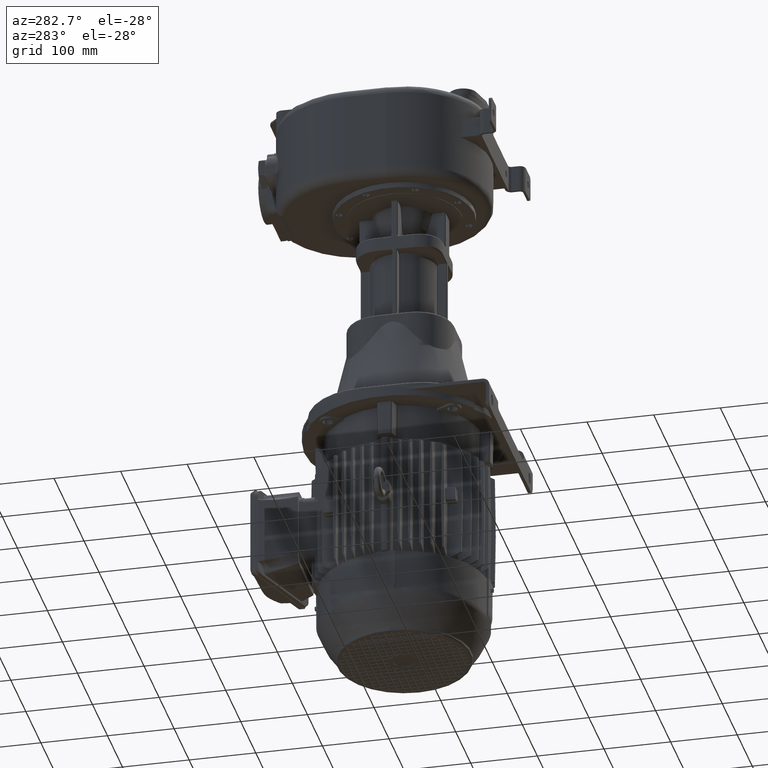
[diagram: clean part render]
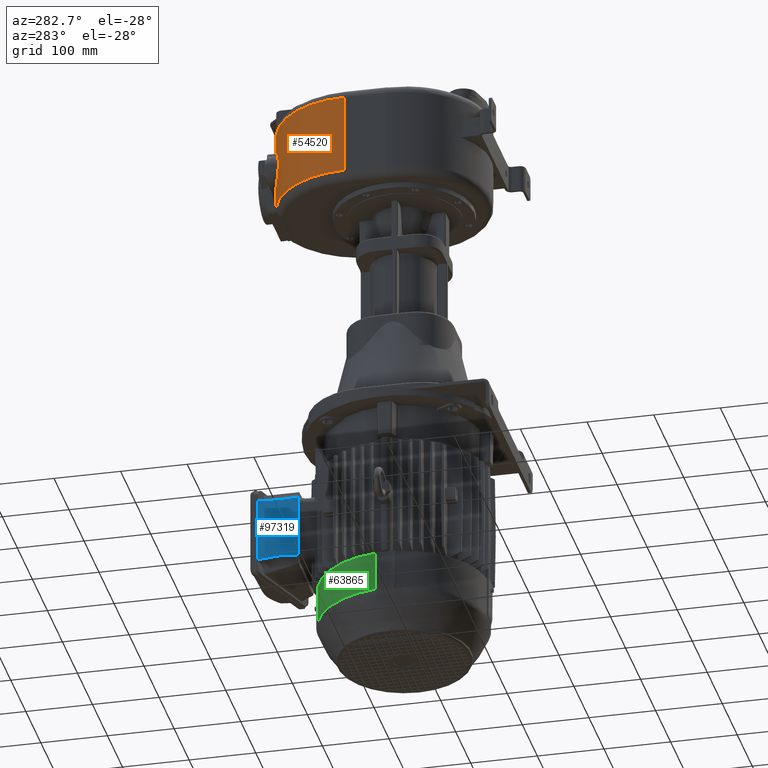
[diagram: same view with three faces highlighted in distinct colors, each labeled with its STEP entity id]
A machine part, auxiliary view with three faces highlighted in distinct colors.
Their STEP definitions:

[orange] entity #54520 — the highlighted cylindrical surface (partial cylindrical patch) has radius 129 mm, axis along (0, 0, -1).
#656=DIRECTION('',(9.529312139187E-8,-3.361244828017E-7,-9.999999999999E-1));
#657=VECTOR('',#656,3.168652454076E1);
#658=CARTESIAN_POINT('',(-3.518181818182E1,3.166967310867E2,4.5E1));
#659=LINE('',#658,#657);
#996=DIRECTION('',(7.019838741060E-7,-3.864279746315E-7,-9.999999999997E-1));
#997=VECTOR('',#996,3.268569113256E1);
#998=CARTESIAN_POINT('',(-3.518181518582E1,3.166967205185E2,-4.331347545921E1));
#999=LINE('',#998,#997);
#1241=CARTESIAN_POINT('',(0.E0,1.925869423132E2,4.5E1));
#1242=DIRECTION('',(0.E0,0.E0,1.E0));
#1243=DIRECTION('',(-2.727272727273E-1,9.620913858417E-1,0.E0));
#1244=AXIS2_PLACEMENT_3D('',#1241,#1242,#1243);
#1246=DIRECTION('',(0.E0,1.550275059840E-14,1.E0));
#1247=VECTOR('',#1246,1.21E2);
#1248=CARTESIAN_POINT('',(-1.29E2,1.925869423132E2,-7.6E1));
#1249=LINE('',#1248,#1247);
#1250=CARTESIAN_POINT('',(0.E0,1.925869423132E2,-7.6E1));
#1251=DIRECTION('',(0.E0,0.E0,-1.E0));
#1252=DIRECTION('',(-1.E0,0.E0,0.E0));
#1253=AXIS2_PLACEMENT_3D('',#1250,#1251,#1252);
#1255=CARTESIAN_POINT('',(-3.518181518582E1,3.166967205185E2,
-4.331347545921E1));
#1256=CARTESIAN_POINT('',(-3.546750103369E1,3.166157351379E2,
-4.324821476931E1));
#1257=CARTESIAN_POINT('',(-3.603761142722E1,3.164520118357E2,
-4.310833304633E1));
#1258=CARTESIAN_POINT('',(-3.688943258625E1,3.162009843981E2,
-4.287009964294E1));
#1259=CARTESIAN_POINT('',(-3.773622321974E1,3.159451084647E2,
-4.260355138208E1));
#1260=CARTESIAN_POINT('',(-3.857688532234E1,3.156847915229E2,
-4.230874643593E1));
#1261=CARTESIAN_POINT('',(-3.941026131800E1,3.154205052662E2,
-4.198585175601E1));
#1262=CARTESIAN_POINT('',(-4.023522996043E1,3.151527401103E2,
-4.163507694740E1));
#1263=CARTESIAN_POINT('',(-4.105067058343E1,3.148820197654E2,
-4.125668435945E1));
#1264=CARTESIAN_POINT('',(-4.185549240496E1,3.146088898864E2,
-4.085099907875E1));
#1265=CARTESIAN_POINT('',(-4.264865770218E1,3.143339085035E2,
-4.041837936415E1));
#1266=CARTESIAN_POINT('',(-4.342913687237E1,3.140576596698E2,
-3.995922707424E1));
#1267=CARTESIAN_POINT('',(-4.419593244733E1,3.137807434923E2,
-3.947398447291E1));
#1268=CARTESIAN_POINT('',(-4.494791575175E1,3.135038352066E2,
-3.896326221082E1));
#1269=CARTESIAN_POINT('',(-4.568399240113E1,3.132276265550E2,
-3.842773561001E1));
#1270=CARTESIAN_POINT('',(-4.640310991754E1,3.129528201553E2,
-3.786813826327E1));
#1271=CARTESIAN_POINT('',(-4.710426822406E1,3.126801228232E2,
-3.728526332746E1));
#1272=CARTESIAN_POINT('',(-4.778652297410E1,3.124102411208E2,
-3.667995208195E1));
#1273=CARTESIAN_POINT('',(-4.844898434049E1,3.121438785839E2,
-3.605309001664E1));
#1274=CARTESIAN_POINT('',(-4.909079574087E1,3.118817412359E2,
-3.540563090386E1));
#1275=CARTESIAN_POINT('',(-4.971113152758E1,3.116245360814E2,
-3.473860835341E1));
#1276=CARTESIAN_POINT('',(-5.030923547228E1,3.113729521976E2,
-3.405308969707E1));
#1277=CARTESIAN_POINT('',(-5.088441220406E1,3.111276607151E2,
-3.335019127657E1));
#1278=CARTESIAN_POINT('',(-5.143607396538E1,3.108892910868E2,
-3.263101868471E1));
#1279=CARTESIAN_POINT('',(-5.196369862140E1,3.106584448124E2,
-3.189668538683E1));
#1280=CARTESIAN_POINT('',(-5.246679821143E1,3.104357065655E2,
-3.114836375353E1));
#1281=CARTESIAN_POINT('',(-5.294509766336E1,3.102215613264E2,
-3.038706289312E1));
#1282=CARTESIAN_POINT('',(-5.339843298450E1,3.100164338297E2,
-2.961363685256E1));
#1283=CARTESIAN_POINT('',(-5.382663385619E1,3.098207393215E2,
-2.882895673020E1));
#1284=CARTESIAN_POINT('',(-5.422957386200E1,3.096348596140E2,
-2.803381302327E1));
#1285=CARTESIAN_POINT('',(-5.460705678582E1,3.094591944144E2,
-2.722935605574E1));
#1286=CARTESIAN_POINT('',(-5.495882842870E1,3.092941567742E2,
-2.641695570692E1));
#1287=CARTESIAN_POINT('',(-5.528487026364E1,3.091400338532E2,
-2.559754288209E1));
#1288=CARTESIAN_POINT('',(-5.558540388959E1,3.089969794570E2,
-2.477129711167E1));
#1289=CARTESIAN_POINT('',(-5.586055326759E1,3.088651724520E2,
-2.393856406921E1));
#1290=CARTESIAN_POINT('',(-5.611024735150E1,3.087448657515E2,
-2.310068181740E1));
#1291=CARTESIAN_POINT('',(-5.633440779923E1,3.086362976111E2,
-2.225907485843E1));
#1292=CARTESIAN_POINT('',(-5.653316329682E1,3.085395865450E2,
-2.141447780586E1));
#1293=CARTESIAN_POINT('',(-5.670681078395E1,3.084547475743E2,
-2.056656100180E1));
#1294=CARTESIAN_POINT('',(-5.685544741786E1,3.083818719414E2,
-1.971495179229E1));
#1295=CARTESIAN_POINT('',(-5.697918543387E1,3.083210233660E2,
-1.886034495313E1));
#1296=CARTESIAN_POINT('',(-5.707810423772E1,3.082722615107E2,
-1.800383159019E1));
#1297=CARTESIAN_POINT('',(-5.715226589367E1,3.082356346791E2,
-1.714648380242E1));
#1298=CARTESIAN_POINT('',(-5.720175318666E1,3.082111610720E2,
-1.628873816022E1));
#1299=CARTESIAN_POINT('',(-5.722658323445E1,3.081988715987E2,
-1.543069499856E1));
#1300=CARTESIAN_POINT('',(-5.722659949104E1,3.081988635496E2,
-1.457251504230E1));
#1301=CARTESIAN_POINT('',(-5.720184378299E1,3.082111162409E2,
-1.371436014939E1));
#1302=CARTESIAN_POINT('',(-5.715244525188E1,3.082355460225E2,
-1.285644618584E1));
#1303=CARTESIAN_POINT('',(-5.707837273061E1,3.082721290098E2,
-1.199889364085E1));
#1304=CARTESIAN_POINT('',(-5.697955255678E1,3.083208425790E2,
-1.114234703749E1));
#1305=CARTESIAN_POINT('',(-5.685592022808E1,3.083816397390E2,
-1.028783006607E1));
#1306=CARTESIAN_POINT('',(-5.670738469522E1,3.084544666387E2,
-9.436463743444E0));
#1307=CARTESIAN_POINT('',(-5.653383255922E1,3.085392601800E2,
-8.588635297418E0));
#1308=CARTESIAN_POINT('',(-5.633515440593E1,3.086359351404E2,
-7.743960367368E0));
#1309=CARTESIAN_POINT('',(-5.611102996734E1,3.087444876722E2,
-6.902115529950E0));
#1310=CARTESIAN_POINT('',(-5.586139481932E1,3.088647680945E2,
-6.064107503580E0));
#1311=CARTESIAN_POINT('',(-5.558633859200E1,3.089965330221E2,
-5.231382946381E0));
#1312=CARTESIAN_POINT('',(-5.528593137579E1,3.091395303859E2,
-4.405253696261E0));
#1313=CARTESIAN_POINT('',(-5.496000405966E1,3.092936030453E2,
-3.585880510286E0));
#1314=CARTESIAN_POINT('',(-5.460829039731E1,3.094586179753E2,
-2.773378693371E0));
#1315=CARTESIAN_POINT('',(-5.423082146824E1,3.096342815914E2,
-1.968737148807E0));
#1316=CARTESIAN_POINT('',(-5.382784338366E1,3.098201840715E2,
-1.173334743478E0));
#1317=CARTESIAN_POINT('',(-5.339951899030E1,3.100159402926E2,
-3.882736588467E-1));
#1318=CARTESIAN_POINT('',(-5.294586823571E1,3.102212152015E2,
3.858096121507E-1));
#1319=CARTESIAN_POINT('',(-5.246706404970E1,3.104355890492E2,1.147971472047E0));
#1320=CARTESIAN_POINT('',(-5.196356421693E1,3.106585044346E2,1.896887185039E0));
#1321=CARTESIAN_POINT('',(-5.143579946226E1,3.108894105135E2,2.631389636320E0));
#1322=CARTESIAN_POINT('',(-5.088415991301E1,3.111277688561E2,3.350507312591E0));
#1323=CARTESIAN_POINT('',(-5.030909875561E1,3.113730098620E2,4.053248121395E0));
#1324=CARTESIAN_POINT('',(-4.971110246729E1,3.116245480261E2,4.738638448922E0));
#1325=CARTESIAN_POINT('',(-4.909085037320E1,3.118817186084E2,5.405572683858E0));
#1326=CARTESIAN_POINT('',(-4.844909104756E1,3.121438352802E2,6.052985298040E0));
#1327=CARTESIAN_POINT('',(-4.778663521767E1,3.124101963902E2,6.679849601345E0));
#1328=CARTESIAN_POINT('',(-4.710435170562E1,3.126800901642E2,7.285192366084E0));
#1329=CARTESIAN_POINT('',(-4.640315524563E1,3.129528027548E2,7.868102380186E0));
#1330=CARTESIAN_POINT('',(-4.568401934027E1,3.132276163553E2,8.427715377949E0));
#1331=CARTESIAN_POINT('',(-4.494795797499E1,3.135038194516E2,8.963232046060E0));
#1332=CARTESIAN_POINT('',(-4.419600346678E1,3.137807175222E2,9.473937330166E0));
#1333=CARTESIAN_POINT('',(-4.342923328398E1,3.140576251622E2,9.959167994732E0));
#1334=CARTESIAN_POINT('',(-4.264875926975E1,3.143338729299E2,1.041832209041E1));
#1335=CARTESIAN_POINT('',(-4.185558764545E1,3.146088572423E2,1.085094937746E1));
#1336=CARTESIAN_POINT('',(-4.105075486696E1,3.148819914976E2,1.125664363540E1));
#1337=CARTESIAN_POINT('',(-4.023530811585E1,3.151527144630E2,1.163504220294E1));
#1338=CARTESIAN_POINT('',(-3.941033728734E1,3.154204808959E2,1.198582060673E1));
#1339=CARTESIAN_POINT('',(-3.857695979083E1,3.156847681906E2,1.230871857160E1));
#1340=CARTESIAN_POINT('',(-3.773629408131E1,3.159450868042E2,1.260352790831E1));
#1341=CARTESIAN_POINT('',(-3.688949423869E1,3.162009660261E2,1.287008232516E1));
#1342=CARTESIAN_POINT('',(-3.603765221189E1,3.164520000734E2,1.310832340155E1));
#1343=CARTESIAN_POINT('',(-3.546751634220E1,3.166157307321E2,1.324821140122E1));
#1344=CARTESIAN_POINT('',(-3.518181516231E1,3.166967204361E2,1.331347545924E1));
#44440=CARTESIAN_POINT('',(-1.29E2,1.925869423132E2,4.5E1));
#44441=VERTEX_POINT('',#44440);
#44444=CARTESIAN_POINT('',(-3.518181818182E1,3.166967310867E2,4.5E1));
#44445=VERTEX_POINT('',#44444);
#44474=CARTESIAN_POINT('',(-1.29E2,1.925869423132E2,-7.6E1));
#44475=VERTEX_POINT('',#44474);
#44476=CARTESIAN_POINT('',(-3.518179473474E1,3.166967377334E2,-7.6E1));
#44477=VERTEX_POINT('',#44476);
#44484=CARTESIAN_POINT('',(-3.518181516231E1,3.166967204361E2,
1.331347545924E1));
#44485=VERTEX_POINT('',#44484);
#44486=CARTESIAN_POINT('',(-3.518181518582E1,3.166967205185E2,
-4.331347545921E1));
#44487=VERTEX_POINT('',#44486);
#54504=CARTESIAN_POINT('',(0.E0,1.925869423132E2,-9.1E1));
#54505=DIRECTION('',(0.E0,0.E0,-1.E0));
#54506=DIRECTION('',(-1.E0,0.E0,0.E0));
#54507=AXIS2_PLACEMENT_3D('',#54504,#54505,#54506);
#54508=CYLINDRICAL_SURFACE('',#54507,1.29E2);
#54509=ORIENTED_EDGE('',*,*,#53953,.F.);
#54511=ORIENTED_EDGE('',*,*,#54510,.T.);
#54513=ORIENTED_EDGE('',*,*,#54512,.F.);
#54515=ORIENTED_EDGE('',*,*,#54514,.T.);
#54516=ORIENTED_EDGE('',*,*,#54232,.F.);
#54517=ORIENTED_EDGE('',*,*,#54496,.T.);
#54518=EDGE_LOOP('',(#54509,#54511,#54513,#54515,#54516,#54517));
#54519=FACE_OUTER_BOUND('',#54518,.F.);
#54520=ADVANCED_FACE('',(#54519),#54508,.T.);
#1245=CIRCLE('',#1244,1.29E2);
#1254=CIRCLE('',#1253,1.29E2);
#1345=B_SPLINE_CURVE_WITH_KNOTS('',3,(#1255,#1256,#1257,#1258,#1259,#1260,#1261,
#1262,#1263,#1264,#1265,#1266,#1267,#1268,#1269,#1270,#1271,#1272,#1273,#1274,
#1275,#1276,#1277,#1278,#1279,#1280,#1281,#1282,#1283,#1284,#1285,#1286,#1287,
#1288,#1289,#1290,#1291,#1292,#1293,#1294,#1295,#1296,#1297,#1298,#1299,#1300,
#1301,#1302,#1303,#1304,#1305,#1306,#1307,#1308,#1309,#1310,#1311,#1312,#1313,
#1314,#1315,#1316,#1317,#1318,#1319,#1320,#1321,#1322,#1323,#1324,#1325,#1326,
#1327,#1328,#1329,#1330,#1331,#1332,#1333,#1334,#1335,#1336,#1337,#1338,#1339,
#1340,#1341,#1342,#1343,#1344),.UNSPECIFIED.,.F.,.F.,(4,1,1,1,1,1,1,1,1,1,1,1,1,
1,1,1,1,1,1,1,1,1,1,1,1,1,1,1,1,1,1,1,1,1,1,1,1,1,1,1,1,1,1,1,1,1,1,1,1,1,1,1,1,
1,1,1,1,1,1,1,1,1,1,1,1,1,1,1,1,1,1,1,1,1,1,1,1,1,1,1,1,1,1,1,1,1,1,4),(0.E0,
1.149425287356E-2,2.298850574713E-2,3.448275862069E-2,4.597701149425E-2,
5.747126436782E-2,6.896551724138E-2,8.045977011494E-2,9.195402298851E-2,
1.034482758621E-1,1.149425287356E-1,1.264367816092E-1,1.379310344828E-1,
1.494252873563E-1,1.609195402299E-1,1.724137931034E-1,1.839080459770E-1,
1.954022988506E-1,2.068965517241E-1,2.183908045977E-1,2.298850574713E-1,
2.413793103448E-1,2.528735632184E-1,2.643678160920E-1,2.758620689655E-1,
2.873563218391E-1,2.988505747126E-1,3.103448275862E-1,3.218390804598E-1,
3.333333333333E-1,3.448275862069E-1,3.563218390805E-1,3.678160919540E-1,
3.793103448276E-1,3.908045977011E-1,4.022988505747E-1,4.137931034483E-1,
4.252873563218E-1,4.367816091954E-1,4.482758620690E-1,4.597701149425E-1,
4.712643678161E-1,4.827586206897E-1,4.942528735632E-1,5.057471264368E-1,
5.172413793103E-1,5.287356321839E-1,5.402298850575E-1,5.517241379310E-1,
5.632183908046E-1,5.747126436782E-1,5.862068965517E-1,5.977011494253E-1,
6.091954022989E-1,6.206896551724E-1,6.321839080460E-1,6.436781609195E-1,
6.551724137931E-1,6.666666666667E-1,6.781609195402E-1,6.896551724138E-1,
7.011494252874E-1,7.126436781609E-1,7.241379310345E-1,7.356321839080E-1,
7.471264367816E-1,7.586206896552E-1,7.701149425287E-1,7.816091954023E-1,
7.931034482759E-1,8.045977011494E-1,8.160919540230E-1,8.275862068966E-1,
8.390804597701E-1,8.505747126437E-1,8.620689655172E-1,8.735632183908E-1,
8.850574712644E-1,8.965517241379E-1,9.080459770115E-1,9.195402298851E-1,
9.310344827586E-1,9.425287356322E-1,9.540229885057E-1,9.655172413793E-1,
9.770114942529E-1,9.885057471264E-1,1.E0),.UNSPECIFIED.);
#53953=EDGE_CURVE('',#44445,#44485,#659,.T.);
#54232=EDGE_CURVE('',#44487,#44477,#999,.T.);
#54496=EDGE_CURVE('',#44487,#44485,#1345,.T.);
#54510=EDGE_CURVE('',#44445,#44441,#1245,.T.);
#54512=EDGE_CURVE('',#44475,#44441,#1249,.T.);
#54514=EDGE_CURVE('',#44475,#44477,#1254,.T.);

[blue] entity #97319 — the highlighted planar face has unit normal (-1, 0, 0).
#29713=DIRECTION('',(-6.111276873054E-13,0.E0,-1.E0));
#29714=VECTOR('',#29713,9.596717450037E1);
#29715=CARTESIAN_POINT('',(-5.752760610192E1,2.785E2,-5.706165127496E2));
#29716=LINE('',#29715,#29714);
#32509=DIRECTION('',(6.871292270266E-13,0.E0,1.E0));
#32510=VECTOR('',#32509,9.874376342764E1);
#32511=CARTESIAN_POINT('',(-5.752760610199E1,3.387628472187E2,
-6.679719817136E2));
#32512=LINE('',#32511,#32510);
#32517=DIRECTION('',(-1.543193902342E-12,9.865492233163E-1,1.634644608898E-1));
#32518=VECTOR('',#32517,5.373293475135E0);
#32519=CARTESIAN_POINT('',(-5.752760610192E1,3.334618287142E2,
-5.701065608071E2));
#32520=LINE('',#32519,#32518);
#32521=CARTESIAN_POINT('',(-5.752760610192E1,2.785E2,-5.706165127496E2));
#32522=CARTESIAN_POINT('',(-5.752760610192E1,2.826770315612E2,
-5.712105395844E2));
#32523=CARTESIAN_POINT('',(-5.752760610191E1,2.916976588107E2,
-5.721303428824E2));
#32524=CARTESIAN_POINT('',(-5.752760610191E1,3.060501736749E2,
-5.725278998243E2));
#32525=CARTESIAN_POINT('',(-5.752760610191E1,3.204059823393E2,
-5.718822262737E2));
#32526=CARTESIAN_POINT('',(-5.752760610192E1,3.293262441453E2,
-5.707917585530E2));
#32527=CARTESIAN_POINT('',(-5.752760610192E1,3.334618287142E2,
-5.701065608071E2));
#32529=CARTESIAN_POINT('',(-5.752760610195E1,3.334618223656E2,
-6.670936381406E2));
#32530=CARTESIAN_POINT('',(-5.752760610195E1,3.292509473323E2,
-6.663959235131E2));
#32531=CARTESIAN_POINT('',(-5.752760610189E1,3.202669302780E2,
-6.653044752588E2));
#32532=CARTESIAN_POINT('',(-5.752760610193E1,3.058761183675E2,
-6.646729826217E2));
#32533=CARTESIAN_POINT('',(-5.752760610188E1,2.916140928274E2,
-6.650772787132E2));
#32534=CARTESIAN_POINT('',(-5.752760610198E1,2.826511009517E2,
-6.659933471888E2));
#32535=CARTESIAN_POINT('',(-5.752760610198E1,2.785E2,-6.665836872500E2));
#32537=DIRECTION('',(8.637643957143E-12,-9.865492233167E-1,1.634644608877E-1));
#32538=VECTOR('',#32537,5.373299910269E0);
#32539=CARTESIAN_POINT('',(-5.752760610199E1,3.387628472187E2,
-6.679719817136E2));
#32540=LINE('',#32539,#32538);
#32557=CARTESIAN_POINT('',(-5.752760610192E1,2.785E2,-5.706165127496E2));
#46257=VERTEX_POINT('',#32557);
#46263=VERTEX_POINT('',#32527);
#46266=CARTESIAN_POINT('',(-5.752760610192E1,3.387628472187E2,
-5.692282182860E2));
#46267=VERTEX_POINT('',#46266);
#46272=CARTESIAN_POINT('',(-5.752760610198E1,2.785E2,-6.665836872500E2));
#46273=VERTEX_POINT('',#46272);
#46274=CARTESIAN_POINT('',(-5.752760610199E1,3.387628472187E2,
-6.679719817136E2));
#46275=VERTEX_POINT('',#46274);
#46289=CARTESIAN_POINT('',(-5.752760610195E1,3.334618223656E2,
-6.670936381406E2));
#46290=VERTEX_POINT('',#46289);
#97302=CARTESIAN_POINT('',(-5.752760610191E1,2.785E2,-5.590198688288E2));
#97303=DIRECTION('',(-1.E0,0.E0,9.162312627171E-13));
#97304=DIRECTION('',(9.162312627171E-13,0.E0,1.E0));
#97305=AXIS2_PLACEMENT_3D('',#97302,#97303,#97304);
#97306=PLANE('',#97305);
#97307=ORIENTED_EDGE('',*,*,#97294,.T.);
#97309=ORIENTED_EDGE('',*,*,#97308,.F.);
#97311=ORIENTED_EDGE('',*,*,#97310,.F.);
#97312=ORIENTED_EDGE('',*,*,#93918,.T.);
#97314=ORIENTED_EDGE('',*,*,#97313,.F.);
#97316=ORIENTED_EDGE('',*,*,#97315,.F.);
#97317=EDGE_LOOP('',(#97307,#97309,#97311,#97312,#97314,#97316));
#97318=FACE_OUTER_BOUND('',#97317,.F.);
#97319=ADVANCED_FACE('',(#97318),#97306,.T.);
#32528=B_SPLINE_CURVE_WITH_KNOTS('',3,(#32521,#32522,#32523,#32524,#32525,
#32526,#32527),.UNSPECIFIED.,.F.,.F.,(4,1,1,1,4),(0.E0,2.429471642057E-1,
4.973089143415E-1,7.516706644774E-1,1.E0),.UNSPECIFIED.);
#32536=B_SPLINE_CURVE_WITH_KNOTS('',3,(#32529,#32530,#32531,#32532,#32533,
#32534,#32535),.UNSPECIFIED.,.F.,.F.,(4,1,1,1,4),(0.E0,2.528536254143E-1,
5.057072794247E-1,7.585609334351E-1,1.E0),.UNSPECIFIED.);
#93918=EDGE_CURVE('',#46257,#46273,#29716,.T.);
#97294=EDGE_CURVE('',#46275,#46267,#32512,.T.);
#97308=EDGE_CURVE('',#46263,#46267,#32520,.T.);
#97310=EDGE_CURVE('',#46257,#46263,#32528,.T.);
#97313=EDGE_CURVE('',#46290,#46273,#32536,.T.);
#97315=EDGE_CURVE('',#46275,#46290,#32540,.T.);

[green] entity #63865 — the highlighted cylindrical surface (partial cylindrical patch) has radius 127.75 mm, axis along (0, 0, -1).
#8858=CARTESIAN_POINT('',(3.352219014706E-14,1.32E2,-7.152000999999E2));
#8859=DIRECTION('',(0.E0,0.E0,1.E0));
#8860=DIRECTION('',(-1.165048543689E-1,9.931901222367E-1,0.E0));
#8861=AXIS2_PLACEMENT_3D('',#8858,#8859,#8860);
#10083=DIRECTION('',(0.E0,0.E0,1.E0));
#10084=VECTOR('',#10083,5.973225400102E1);
#10085=CARTESIAN_POINT('',(-1.488349514563E1,2.588800381157E2,
-7.749323540009E2));
#10086=LINE('',#10085,#10084);
#10133=CARTESIAN_POINT('',(3.947056511023E-14,1.32E2,-7.749323540009E2));
#10134=DIRECTION('',(0.E0,0.E0,-1.E0));
#10135=DIRECTION('',(-9.931901222367E-1,1.165048543689E-1,0.E0));
#10136=AXIS2_PLACEMENT_3D('',#10133,#10134,#10135);
#10161=DIRECTION('',(0.E0,0.E0,-1.E0));
#10162=VECTOR('',#10161,5.973225400101E1);
#10163=CARTESIAN_POINT('',(-1.268800381157E2,1.468834951456E2,
-7.152000999998E2));
#10164=LINE('',#10163,#10162);
#48294=CARTESIAN_POINT('',(-1.268800381157E2,1.468834951456E2,
-7.749323540009E2));
#48295=CARTESIAN_POINT('',(-1.488349514563E1,2.588800381157E2,
-7.749323540009E2));
#48296=VERTEX_POINT('',#48294);
#48297=VERTEX_POINT('',#48295);
#48346=CARTESIAN_POINT('',(-1.488349514563E1,2.588800381157E2,
-7.152000999999E2));
#48347=CARTESIAN_POINT('',(-1.268800381157E2,1.468834951456E2,
-7.152000999999E2));
#48348=VERTEX_POINT('',#48346);
#48349=VERTEX_POINT('',#48347);
#63853=CARTESIAN_POINT('',(4.646303168228E-14,1.32E2,-8.451491429495E2));
#63854=DIRECTION('',(0.E0,0.E0,-1.E0));
#63855=DIRECTION('',(-1.E0,0.E0,0.E0));
#63856=AXIS2_PLACEMENT_3D('',#63853,#63854,#63855);
#63857=CYLINDRICAL_SURFACE('',#63856,1.2775E2);
#63858=ORIENTED_EDGE('',*,*,#63846,.T.);
#63859=ORIENTED_EDGE('',*,*,#63716,.T.);
#63860=ORIENTED_EDGE('',*,*,#62535,.T.);
#63862=ORIENTED_EDGE('',*,*,#63861,.T.);
#63863=EDGE_LOOP('',(#63858,#63859,#63860,#63862));
#63864=FACE_OUTER_BOUND('',#63863,.F.);
#63865=ADVANCED_FACE('',(#63864),#63857,.T.);
#8862=CIRCLE('',#8861,1.2775E2);
#10137=CIRCLE('',#10136,1.2775E2);
#62535=EDGE_CURVE('',#48348,#48349,#8862,.T.);
#63716=EDGE_CURVE('',#48297,#48348,#10086,.T.);
#63846=EDGE_CURVE('',#48296,#48297,#10137,.T.);
#63861=EDGE_CURVE('',#48349,#48296,#10164,.T.);